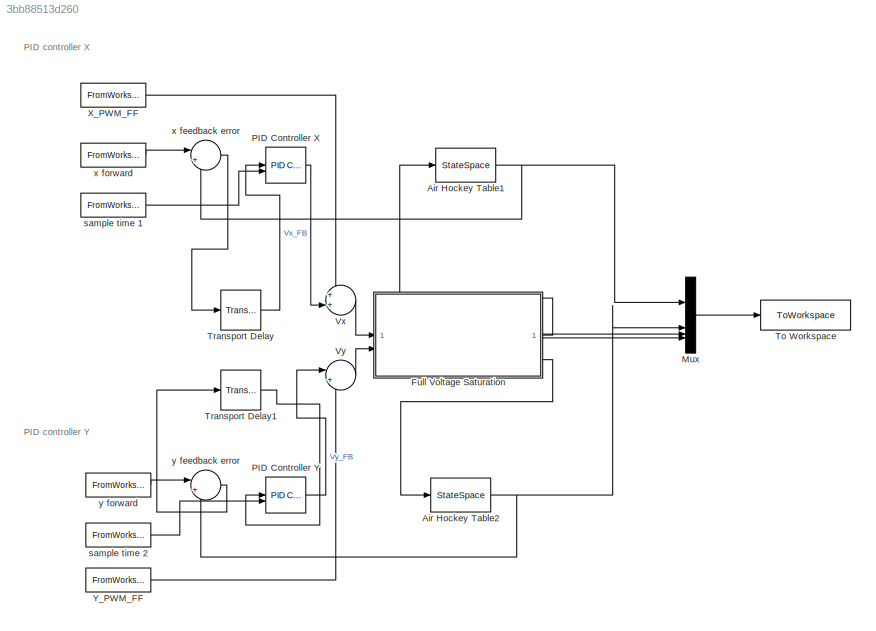
MODEL slx_3bb88513d260
KIND model
CONFIG AbsTol = auto
CONFIG EnableMultiTasking = off
CONFIG FixedStep = auto
CONFIG MaxStep = auto
CONFIG MinStep = auto
CONFIG RelTol = 1e-3
CONFIG SampleTimeConstraint = Unconstrained
CONFIG SolverName = VariableStepAuto
CONFIG StartTime = 0.0
CONFIG StopTime = max(data.Time_ms_)/1000
BLOCK [StateSpace] Air Hockey Table1
  A = A_X
  B = B_X
  C = C_X
  D = D_X
  InitialCondition = [data.X_Accel_m_s2_(1)/C_X(1,3);data.X_Velocity_m_s_(1)/C_X(1,3);data.x(1)/C_X(1,3)]
BLOCK [StateSpace] Air Hockey Table2
  A = A_Y
  B = B_Y
  C = C_Y
  D = D_Y
  InitialCondition = [data.Y_Accel_m_s2_(1)/C_Y(1,3);data.Y_Velocity_m_s_(1)/C_Y(1,3);data.y(1)/C_Y(1,3)]
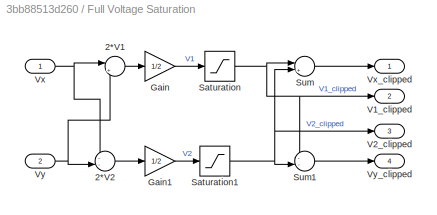
BLOCK [SubSystem] Full Voltage Saturation
BLOCK [Sum] Full Voltage Saturation/2*V1
  Inputs = |+-
  NameLocation = top
BLOCK [Sum] Full Voltage Saturation/2*V2
  Inputs = --|
BLOCK [Gain] Full Voltage Saturation/Gain
  Gain = 1/2
BLOCK [Gain] Full Voltage Saturation/Gain1
  Gain = 1/2
BLOCK [Saturate] Full Voltage Saturation/Saturation
  Commented = through
  LowerLimit = -24
  UpperLimit = 24
  ZeroCross = off
BLOCK [Saturate] Full Voltage Saturation/Saturation1
  Commented = through
  LowerLimit = -24
  UpperLimit = 24
  ZeroCross = off
BLOCK [Sum] Full Voltage Saturation/Sum
  Inputs = |+-
BLOCK [Sum] Full Voltage Saturation/Sum1
  Inputs = --|
BLOCK [Outport] Full Voltage Saturation/V1_clipped
  Port = 2
BLOCK [Outport] Full Voltage Saturation/V2_clipped
  Port = 3
BLOCK [Inport] Full Voltage Saturation/Vx
BLOCK [Outport] Full Voltage Saturation/Vx_clipped
BLOCK [Inport] Full Voltage Saturation/Vy
  Port = 2
BLOCK [Outport] Full Voltage Saturation/Vy_clipped
  Port = 4
BLOCK [Mux] Mux
  DisplayOption = bar
BLOCK [Reference] PID Controller X  REF=slpidlib/PID Controller
  LibrarySourceBlock = simulink/Continuous/PID Controller
  NameLocation = top
  SourceBlock = slpidlib/PID Controller
  SourceType = PID 1dof
BLOCK [Reference] PID Controller Y  REF=slpidlib/PID Controller
  LibrarySourceBlock = simulink/Continuous/PID Controller
  NameLocation = top
  SourceBlock = slpidlib/PID Controller
  SourceType = PID 1dof
BLOCK [ToWorkspace] To Workspace
  FixptAsFi = on
  MaxDataPoints = inf
  SampleTime = -1
  SaveFormat = Timeseries
  VariableName = simout1
BLOCK [TransportDelay] Transport Delay
  DelayTime = 0.00009
BLOCK [TransportDelay] Transport Delay1
  DelayTime = 0.00009
BLOCK [Sum] Vx
  Inputs = ++|
BLOCK [Sum] Vy
  Inputs = |++
  NameLocation = top
BLOCK [FromWorkspace] X_PWM_FF
  VariableName = [data.Time_ms_/1000, data.X_PWM*24]
BLOCK [FromWorkspace] Y_PWM_FF
  VariableName = [data.Time_ms_/1000, data.Y_PWM*24]
BLOCK [FromWorkspace] sample time 1
  VariableName = [data.Time_ms_/1000, data.dt/1000]
BLOCK [FromWorkspace] sample time 2
  VariableName = [data.Time_ms_/1000, data.dt/1000]
BLOCK [Sum] x feedback error
  Inputs = |+-
  NameLocation = top
BLOCK [FromWorkspace] x forward
  VariableName = [data.Time_ms_/1000, data.x]
BLOCK [Sum] y feedback error
  Inputs = |+-
  NameLocation = top
BLOCK [FromWorkspace] y forward
  VariableName = [data.Time_ms_/1000, data.y]
ANNOTATION (root): PID controller X
ANNOTATION (root): PID controller Y
NET Air Hockey Table1:1 -> Mux:1, x feedback error:2
NET Air Hockey Table2:1 -> Mux:2, y feedback error:2
LINE Full Voltage Saturation/2*V1:1 -> Full Voltage Saturation/Gain:1
LINE Full Voltage Saturation/2*V2:1 -> Full Voltage Saturation/Gain1:1
LINE Full Voltage Saturation/Gain1:1 -> Full Voltage Saturation/Saturation1:1
LINE Full Voltage Saturation/Gain:1 -> Full Voltage Saturation/Saturation:1
NET Full Voltage Saturation/Saturation1:1 -> Full Voltage Saturation/Sum1:2, Full Voltage Saturation/Sum:2, Full Voltage Saturation/V2_clipped:1
NET Full Voltage Saturation/Saturation:1 -> Full Voltage Saturation/Sum1:1, Full Voltage Saturation/Sum:1, Full Voltage Saturation/V1_clipped:1
LINE Full Voltage Saturation/Sum1:1 -> Full Voltage Saturation/Vy_clipped:1
LINE Full Voltage Saturation/Sum:1 -> Full Voltage Saturation/Vx_clipped:1
NET Full Voltage Saturation/Vx:1 -> Full Voltage Saturation/2*V1:1, Full Voltage Saturation/2*V2:1
NET Full Voltage Saturation/Vy:1 -> Full Voltage Saturation/2*V1:2, Full Voltage Saturation/2*V2:2
LINE Full Voltage Saturation:1 -> Air Hockey Table1:1
LINE Full Voltage Saturation:2 -> Mux:3
LINE Full Voltage Saturation:3 -> Mux:4
LINE Full Voltage Saturation:4 -> Air Hockey Table2:1
LINE Mux:1 -> To Workspace:1
LINE PID Controller X:1 -> Vx:2
LINE PID Controller Y:1 -> Vy:1
LINE Transport Delay1:1 -> PID Controller Y:1
LINE Transport Delay:1 -> PID Controller X:1
LINE Vx:1 -> Full Voltage Saturation:1
LINE Vy:1 -> Full Voltage Saturation:2
LINE X_PWM_FF:1 -> Vx:1
LINE Y_PWM_FF:1 -> Vy:2
LINE sample time 1:1 -> PID Controller X:2
LINE sample time 2:1 -> PID Controller Y:2
LINE x feedback error:1 -> Transport Delay:1
LINE x forward:1 -> x feedback error:1
LINE y feedback error:1 -> Transport Delay1:1
LINE y forward:1 -> y feedback error:1
note: NET lines group one-source signal fan-out (src -> all destinations, sorted); 1:1 wires keep LINE
